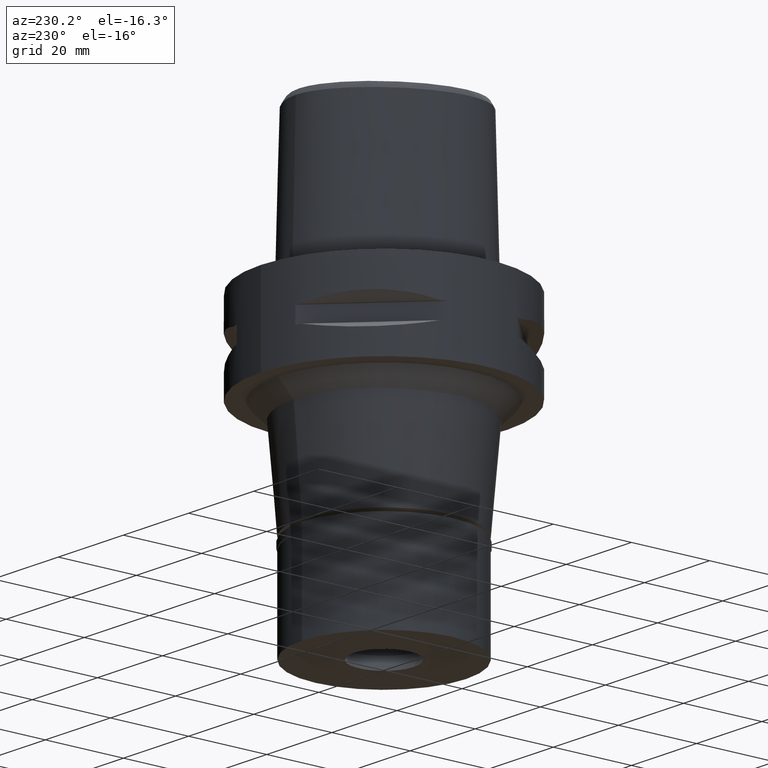
[diagram: clean part render]
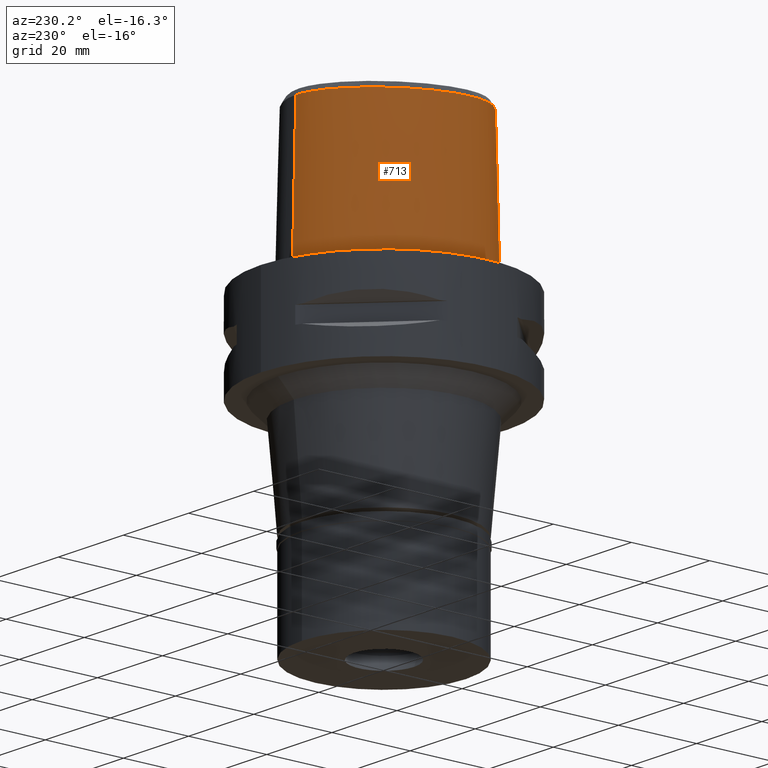
[diagram: same view with one face highlighted and labeled with its STEP entity id]
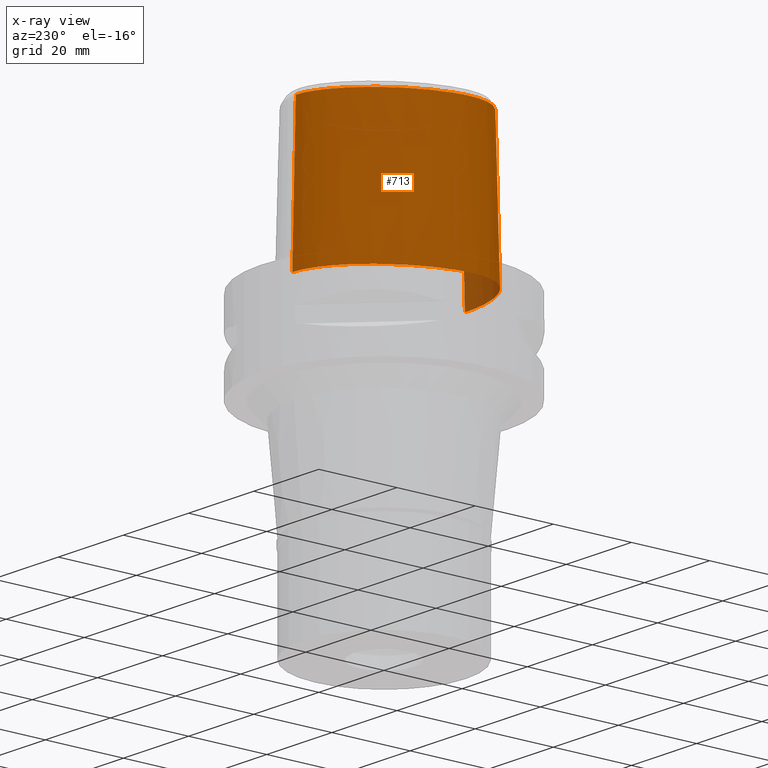
[diagram: x-ray of the same camera — body ghosted, the highlighted face saturated]
A machine part, auxiliary view. The second image highlights one B-rep face of the part: STEP entity #713.
The next image is the same camera in x-ray: the body ghosted, the highlighted face saturated — about 3% of this face is hidden behind the body in this view.
In plain terms, the highlighted face is a freeform B-spline surface patch.
Its self-contained STEP definition (entity closure, byte-faithful):
#1 = CARTESIAN_POINT ( 'NONE',  ( -22.05732873467161426, -6.847636717520081184, 3.441629198969696490E-07 ) ) ;
#24 = CARTESIAN_POINT ( 'NONE',  ( -21.55524825182212822, -8.996025388165341141, 3.441629198969696490E-07 ) ) ;
#25 = CARTESIAN_POINT ( 'NONE',  ( -2.959849823792572554, -20.23176327183055534, 12.73527464652173613 ) ) ;
#52 = CARTESIAN_POINT ( 'NONE',  ( -1.661817726879000115E-12, -20.38876923348000147, 11.44999999999999929 ) ) ;
#93 = CARTESIAN_POINT ( 'NONE',  ( 0.4696382034781999559, 23.16972802431000034, 11.93048338286000032 ) ) ;
#99 = CARTESIAN_POINT ( 'NONE',  ( -4.029432077527878242, -20.06721453946630618, 15.01437442104100484 ) ) ;
#122 = CARTESIAN_POINT ( 'NONE',  ( -3.551083459767261807, -20.15710162087193069, 13.53004354150726307 ) ) ;
#169 = CARTESIAN_POINT ( 'NONE',  ( -19.54161166109999925, -11.28235475116999886, 37.25232566485999541 ) ) ;
#193 = CARTESIAN_POINT ( 'NONE',  ( -10.14358064019000061, 18.45723403934000117, 37.25232566485999541 ) ) ;
#215 = CARTESIAN_POINT ( 'NONE',  ( -19.86834415665000009, 4.339653612124999782, 37.25232566485999541 ) ) ;
#218 = ORIENTED_EDGE ( 'NONE', *, *, #397, .T. ) ;
#236 = CARTESIAN_POINT ( 'NONE',  ( -22.26285556735000171, -4.100361500036999729, -0.7304377581344000392 ) ) ;
#259 = CARTESIAN_POINT ( 'NONE',  ( -4.750826140047999857, 21.65775785709999823, 37.25232566485999541 ) ) ;
#276 = CARTESIAN_POINT ( 'NONE',  ( -1.317019615845748337, -20.16707992222125512, 19.33098026910944967 ) ) ;
#280 = EDGE_LOOP ( 'NONE', ( #1073, #3391, #2094, #4333, #3644, #218, #3197, #1909 ) ) ;
#297 = CARTESIAN_POINT ( 'NONE',  ( -2.857315363469369540, -20.09903617488752303, 18.37023940744869321 ) ) ;
#308 = LINE ( 'NONE', #2653, #4291 ) ;
#309 = VERTEX_POINT ( 'NONE', #2639 ) ;
#343 = CARTESIAN_POINT ( 'NONE',  ( -5.098437014071874884, 22.52602538260950382, 3.441629198969696490E-07 ) ) ;
#349 = CARTESIAN_POINT ( 'NONE',  ( -2.842789508326925674, -20.09986324511327282, 18.38462965111123282 ) ) ;
#360 = CARTESIAN_POINT ( 'NONE',  ( 2.041042029990999821E-08, -19.88004246002000031, 31.80000004972000127 ) ) ;
#366 = EDGE_CURVE ( 'NONE', #570, #385, #2148, .T. ) ;
#385 = VERTEX_POINT ( 'NONE', #3046 ) ;
#395 = CARTESIAN_POINT ( 'NONE',  ( -7.571159429991846324, 21.31457030504720507, 3.441629198969696490E-07 ) ) ;
#397 = EDGE_CURVE ( 'NONE', #2769, #4321, #425, .T. ) ;
#399 = CARTESIAN_POINT ( 'NONE',  ( -1.661817726879000115E-12, -20.38876923348000147, 11.44999999999999929 ) ) ;
#419 = CARTESIAN_POINT ( 'NONE',  ( -20.34961797811084239, -11.74885741755973712, 3.441629198969696490E-07 ) ) ;
#420 = CARTESIAN_POINT ( 'NONE',  ( -2.088609826763990984, -20.31247420980785279, 12.02750272037200396 ) ) ;
#425 = B_SPLINE_CURVE_WITH_KNOTS ( 'NONE', 3,
 ( #2337, #4287, #840, #1956, #4655, #496, #1259, #448, #2359, #2802, #4578, #2754, #4600, #1587, #2733, #546, #3823, #2386, #4559, #918, #2438, #3844, #3869 ),
 .UNSPECIFIED., .F., .F.,
 ( 4, 1, 1, 1, 1, 1, 1, 1, 1, 1, 1, 1, 1, 1, 1, 1, 1, 1, 1, 1, 4 ),
 ( 0.0000000000000000000, 0.03580973941716368569, 0.1234633994701200693, 0.1672902294965457060, 0.2111170595229713565, 0.2549438895495022006, 0.2768573045626098739, 0.2987707195758226297, 0.3206841345891406347, 0.3425975496022482525, 0.3864243796287790134, 0.4302512096550994425, 0.4740780396816303144, 0.5617316997344815599, 0.6493853597874379435, 0.7370390198402891890, 0.8246926798930352964, 0.8685195099195660573, 0.9123463399460022272, 0.9561731699724383970, 1.000000000000000000 ),
 .UNSPECIFIED. ) ;
#448 = CARTESIAN_POINT ( 'NONE',  ( -18.90964971338730649, -12.28759719904381775, 36.52186244848004293 ) ) ;
#472 = CARTESIAN_POINT ( 'NONE',  ( -3.867987851167895119, -20.10354514999471576, 14.29756826632480582 ) ) ;
#496 = CARTESIAN_POINT ( 'NONE',  ( -16.39211280191593545, -14.95758113319465643, 36.52186244848004293 ) ) ;
#497 = CARTESIAN_POINT ( 'NONE',  ( -1.977206331265692452, -20.32050743453869757, 11.96330905372609799 ) ) ;
#519 = CARTESIAN_POINT ( 'NONE',  ( -2.503154198993181812, -19.81241979316332902, 31.80000012753033545 ) ) ;
#538 = CARTESIAN_POINT ( 'NONE',  ( -18.08416038489000144, 10.44089487312000131, -0.7304377581344000392 ) ) ;
#546 = CARTESIAN_POINT ( 'NONE',  ( -17.27359245833050139, 9.972912913898566600, 36.52186244847061403 ) ) ;
#568 = CARTESIAN_POINT ( 'NONE',  ( -18.89485270846000020, -12.27684368261999914, 37.25232566485999541 ) ) ;
#570 = VERTEX_POINT ( 'NONE', #2380 ) ;
#586 = CARTESIAN_POINT ( 'NONE',  ( -16.97022731231999870, -15.69280483270000026, -0.7304377581344000392 ) ) ;
#608 = CARTESIAN_POINT ( 'NONE',  ( -21.05621893652999788, -0.4440251899840000349, 37.25232566485999541 ) ) ;
#625 = CARTESIAN_POINT ( 'NONE',  ( -1.022356909784995604, -20.17471979261204496, 19.42121704673484928 ) ) ;
#633 = CARTESIAN_POINT ( 'NONE',  ( -21.57281239451999966, -9.001246195747999224, -0.7304377581344000392 ) ) ;
#670 = CARTESIAN_POINT ( 'NONE',  ( -2.797646836458226094, -20.10241019320246636, 18.42861229340974916 ) ) ;
#687 = CARTESIAN_POINT ( 'NONE',  ( -11.23259756431803069, -18.89324217936943739, 3.441629198969696490E-07 ) ) ;
#692 = CARTESIAN_POINT ( 'NONE',  ( -3.719813922851108678, -20.04919639763396688, 17.10180620201972346 ) ) ;
#703 = CARTESIAN_POINT ( 'NONE',  ( 0.4560943670357999746, -20.69106768676000030, -0.7304377581344000392 ) ) ;
#713 = ADVANCED_FACE ( 'NONE', ( #3136 ), #2235, .T. ) ;
#722 = CARTESIAN_POINT ( 'NONE',  ( -1.541601196968726439, -20.15999053869087376, 19.24512624620321688 ) ) ;
#741 = CARTESIAN_POINT ( 'NONE',  ( -10.74572890502576961, 19.17433593087259069, 3.441629198969696490E-07 ) ) ;
#745 = CARTESIAN_POINT ( 'NONE',  ( -4.049380355484204941, -20.05052708583788856, 15.57772937486773479 ) ) ;
#753 = CARTESIAN_POINT ( 'NONE',  ( 0.4439216892824000560, -19.74161834927000214, 37.25232566485999541 ) ) ;
#766 = CARTESIAN_POINT ( 'NONE',  ( -18.56841064515890594, -14.16937987687428446, 3.441629198969696490E-07 ) ) ;
#767 = CARTESIAN_POINT ( 'NONE',  ( -3.956604743486963560, -20.08538240419652965, 14.62524707979685701 ) ) ;
#785 = CARTESIAN_POINT ( 'NONE',  ( 0.6658292871552999870, 22.52368266482999815, 37.25232566485999541 ) ) ;
#787 = CARTESIAN_POINT ( 'NONE',  ( -3.736722311398999796, -19.67781602443999844, 31.80000000000000071 ) ) ;
#793 = CARTESIAN_POINT ( 'NONE',  ( -3.145688023666773248, -20.21028107318161560, 12.94651254117393790 ) ) ;
#840 = CARTESIAN_POINT ( 'NONE',  ( -7.300578999875363628, -19.07170748891658008, 36.52186244848004293 ) ) ;
#841 = CARTESIAN_POINT ( 'NONE',  ( -1.596128179208920805, -20.34441808942903762, 11.77774001012001648 ) ) ;
#870 = CARTESIAN_POINT ( 'NONE',  ( -1.559125063743354023, -20.34646528984321634, 11.76212569188356483 ) ) ;
#912 = CARTESIAN_POINT ( 'NONE',  ( -20.65879046252000251, -10.48283618550000007, 11.93048338286000032 ) ) ;
#918 = CARTESIAN_POINT ( 'NONE',  ( -4.757642277158981692, 21.67478330407301002, 36.52186244848004293 ) ) ;
#936 = CARTESIAN_POINT ( 'NONE',  ( -2.503210899606000073, 22.99958936463000114, 11.93048338286000032 ) ) ;
#943 = CARTESIAN_POINT ( 'NONE',  ( -3.704239276368590961, -19.64128040965313460, 33.37395414949332917 ) ) ;
#963 = CARTESIAN_POINT ( 'NONE',  ( -20.36913766458000197, -10.35391840021000043, 24.59140452385999964 ) ) ;
#983 = CARTESIAN_POINT ( 'NONE',  ( -7.099337687541999564, 20.50831375519000233, 37.25232566485999541 ) ) ;
#1005 = CARTESIAN_POINT ( 'NONE',  ( -21.44619289842999876, -6.759806545885999718, 24.59140452385999964 ) ) ;
#1022 = CARTESIAN_POINT ( 'NONE',  ( -1.531415402279227234, -20.16033292941942889, 19.24930670798917731 ) ) ;
#1044 = CARTESIAN_POINT ( 'NONE',  ( -0.2465875714314316736, -20.18628283969000492, 19.55000000000000071 ) ) ;
#1050 = CARTESIAN_POINT ( 'NONE',  ( -1.853278688440999966, -20.08023918736000368, 24.59140452385999964 ) ) ;
#1067 = CARTESIAN_POINT ( 'NONE',  ( -3.843226891659567990, -20.04326967196604770, 16.80669488626443453 ) ) ;
#1073 = ORIENTED_EDGE ( 'NONE', *, *, #4581, .F. ) ;
#1091 = CARTESIAN_POINT ( 'NONE',  ( -0.5021919333195310475, -20.18408035453229132, 19.52742672269794610 ) ) ;
#1114 = CARTESIAN_POINT ( 'NONE',  ( -4.017504546883868599, -20.04299984835959236, 16.02821068311043362 ) ) ;
#1121 = CARTESIAN_POINT ( 'NONE',  ( -6.232237572135999493, -19.68961172917000013, 24.59140452385999964 ) ) ;
#1133 = CARTESIAN_POINT ( 'NONE',  ( -1.038064003293436954, -20.37481329331115631, 11.54609264903705323 ) ) ;
#1149 = EDGE_CURVE ( 'NONE', #3904, #4741, #1903, .T. ) ;
#1150 = CARTESIAN_POINT ( 'NONE',  ( 6.819067132380117027E-09, -19.98212988583278005, 27.71666688228179254 ) ) ;
#1158 = CARTESIAN_POINT ( 'NONE',  ( -22.24453906991494279, -4.100468750050205280, 3.441629198969696490E-07 ) ) ;
#1159 = CARTESIAN_POINT ( 'NONE',  ( -3.226606941002307494, -20.20026030062611255, 13.05134941781085089 ) ) ;
#1259 = CARTESIAN_POINT ( 'NONE',  ( -17.90324032096225793, -13.53935111955195403, 36.52186244848004293 ) ) ;
#1278 = CARTESIAN_POINT ( 'NONE',  ( -20.46725041954999824, 4.555493640485000384, 11.93048338286000032 ) ) ;
#1301 = CARTESIAN_POINT ( 'NONE',  ( -20.76670355099999909, 4.663413654663999708, -0.7304377581344000392 ) ) ;
#1309 = CARTESIAN_POINT ( 'NONE',  ( -3.671249123513567802, -19.60525173594972514, 34.94790829898666829 ) ) ;
#1325 = CARTESIAN_POINT ( 'NONE',  ( -10.34823233993000002, 18.70095494589999774, 24.59140452385999964 ) ) ;
#1352 = CARTESIAN_POINT ( 'NONE',  ( -10.75753573941999974, 19.18839675902999886, -0.7304377581344000392 ) ) ;
#1371 = CARTESIAN_POINT ( 'NONE',  ( -17.53318573147999970, 10.12278927168000031, 24.59140452385999964 ) ) ;
#1387 = CARTESIAN_POINT ( 'NONE',  ( -1.218758968578478985, -20.16976420100720091, 19.36287338274978254 ) ) ;
#1413 = CARTESIAN_POINT ( 'NONE',  ( -2.506005705531090477, -20.11792984725621025, 18.68269362135634637 ) ) ;
#1420 = CARTESIAN_POINT ( 'NONE',  ( -1.870070490387999884, -20.39691389421999901, 11.93048338286000032 ) ) ;
#1433 = EDGE_CURVE ( 'NONE', #2769, #3662, #3959, .T. ) ;
#1439 = CARTESIAN_POINT ( 'NONE',  ( -3.727468641458606236, -20.04882030213079958, 17.08383066321836452 ) ) ;
#1454 = EDGE_CURVE ( 'NONE', #309, #3662, #3032, .T. ) ;
#1485 = CARTESIAN_POINT ( 'NONE',  ( -16.95889172059685279, -15.67838866508460072, 3.441629198969696490E-07 ) ) ;
#1491 = CARTESIAN_POINT ( 'NONE',  ( -3.268879148500512422, -20.07506799491126870, 17.90553241905220716 ) ) ;
#1515 = CARTESIAN_POINT ( 'NONE',  ( -3.637738201363999835, -19.56971413236999879, 36.52186244848000030 ) ) ;
#1540 = CARTESIAN_POINT ( 'NONE',  ( -4.050822018950117176, -20.05812548816914997, 15.26904667092838253 ) ) ;
#1587 = CARTESIAN_POINT ( 'NONE',  ( -21.07430010672459630, -0.4408303445192950920, 36.52186244848004293 ) ) ;
#1611 = CARTESIAN_POINT ( 'NONE',  ( -3.772619049652670142, -20.12080010158280530, 14.02677620304511308 ) ) ;
#1633 = CARTESIAN_POINT ( 'NONE',  ( -3.736722311398999796, -19.67781602443999844, 31.80000000000000071 ) ) ;
#1680 = CARTESIAN_POINT ( 'NONE',  ( -19.40779766805999884, -12.64961925947000054, 11.93048338286000032 ) ) ;
#1681 = EDGE_CURVE ( 'NONE', #309, #3904, #1912, .T. ) ;
#1703 = CARTESIAN_POINT ( 'NONE',  ( -21.31039814949999922, -4.105938498095000000, 37.25232566485999541 ) ) ;
#1723 = CARTESIAN_POINT ( 'NONE',  ( -21.99640701788999664, -0.2778990158826999957, -0.7304377581344000392 ) ) ;
#1746 = CARTESIAN_POINT ( 'NONE',  ( -21.62788395544999887, -4.104079498742000176, 24.59140452385999964 ) ) ;
#1769 = CARTESIAN_POINT ( 'NONE',  ( -14.52531262065999940, -16.95413746055000104, 11.93048338286000032 ) ) ;
#1816 = CARTESIAN_POINT ( 'NONE',  ( -3.544068355345226795, -20.05881304102014795, 17.46363488651062923 ) ) ;
#1825 = CARTESIAN_POINT ( 'NONE',  ( -14.21104791763000108, -16.40237691761999628, 37.25232566485999541 ) ) ;
#1838 = CARTESIAN_POINT ( 'NONE',  ( -1.517151023953191569, -20.16080907702859548, 19.25511494137359492 ) ) ;
#1857 = CARTESIAN_POINT ( 'NONE',  ( 6.589893038288000081E-11, 23.47499999998000320, 1.563934167354999746E-13 ) ) ;
#1870 = CARTESIAN_POINT ( 'NONE',  ( -11.02138179110999872, -18.31230451265999903, 24.59140452385999964 ) ) ;
#1882 = CARTESIAN_POINT ( 'NONE',  ( -20.74942740066090252, 4.657187497066225923, 3.441629198969696490E-07 ) ) ;
#1903 = B_SPLINE_CURVE_WITH_KNOTS ( 'NONE', 3,
 ( #2150, #1044, #1091, #2548, #625, #1387, #276, #2616, #4415, #1838, #1022, #4018, #722, #2571, #2172, #3658, #3292, #4780, #1413, #2242, #2932, #3724, #670, #2194, #349, #3364, #297, #4852, #1491, #4488, #1816, #3317, #2953, #4807, #2521, #692, #1439, #4440, #3340, #1067, #2594, #4107, #1114, #2644, #2267, #3751, #745, #1933, #1540, #99, #767, #3411, #472, #1984, #4532, #1611, #3118, #3504, #3047, #3801, #122, #2387, #4156, #2338, #4180, #1159, #793, #3020, #25, #1957, #4129, #3870, #2009, #2315, #4203, #420, #497, #4507, #3482, #2734, #4579, #841, #3434, #3096, #870, #1133, #4601, #52 ),
 .UNSPECIFIED., .F., .F.,
 ( 4, 2, 2, 1, 1, 1, 1, 1, 2, 2, 2, 2, 2, 1, 1, 1, 2, 2, 2, 2, 2, 1, 1, 2, 2, 2, 2, 1, 2, 2, 2, 2, 1, 1, 1, 2, 2, 2, 2, 2, 1, 1, 1, 1, 2, 2, 2, 2, 2, 1, 1, 2, 2, 4 ),
 ( 0.0000000000000000000, 0.06249999999997690736, 0.09374999999996537492, 0.1093749999999596434, 0.1171874999999567568, 0.1210937499999554523, 0.1230468749999548139, 0.1240234374999544531, 0.1245117187499541200, 0.1249999999999537870, 0.1874999999999379940, 0.2187499999999301115, 0.2343749999999261147, 0.2421874999999243383, 0.2460937499999236722, 0.2480468749999231726, 0.2490234374999228950, 0.2499999999999226175, 0.3124999999999080735, 0.3437499999999004685, 0.3593749999998966937, 0.3671874999998951949, 0.3710937499998949174, 0.3730468749998947509, 0.3749999999998945843, 0.4374999999999062417, 0.4687499999999120703, 0.4843749999999149569, 0.4921874999999159561, 0.4999999999999165112, 0.5624999999999221734, 0.5937499999999247269, 0.6093749999999261702, 0.6171874999999270583, 0.6210937499999275024, 0.6230468749999276135, 0.6249999999999278355, 0.6874999999999350520, 0.6953124999999359401, 0.7031249999999368283, 0.7187499999999384936, 0.7343749999999401590, 0.7421874999999411582, 0.7460937499999414912, 0.7480468749999418243, 0.7499999999999422684, 0.8124999999999570344, 0.8437499999999643618, 0.8593749999999679146, 0.8671874999999698019, 0.8710937499999709122, 0.8730468749999713562, 0.8749999999999719114, 1.000000000000000000 ),
 .UNSPECIFIED. ) ;
#1909 = ORIENTED_EDGE ( 'NONE', *, *, #366, .T. ) ;
#1912 = B_SPLINE_CURVE_WITH_KNOTS ( 'NONE', 3,
 ( #360, #1150, #3352, #2678 ),
 .UNSPECIFIED., .F., .F.,
 ( 4, 4 ),
 ( 0.0000000000000000000, 1.000000000000000000 ),
 .UNSPECIFIED. ) ;
#1933 = CARTESIAN_POINT ( 'NONE',  ( -4.049870060086219858, -20.05130102129822589, 15.54460910783599914 ) ) ;
#1956 = CARTESIAN_POINT ( 'NONE',  ( -10.91891098964702955, -18.03046406390577161, 36.52186244848004293 ) ) ;
#1957 = CARTESIAN_POINT ( 'NONE',  ( -2.919880518336348985, -20.23621022156304505, 12.69335127770128757 ) ) ;
#1984 = CARTESIAN_POINT ( 'NONE',  ( -3.836466503143192597, -20.10950408110994658, 14.19903511296639032 ) ) ;
#2009 = CARTESIAN_POINT ( 'NONE',  ( -2.886329479777532292, -20.23990628844108741, 12.65892640036732786 ) ) ;
#2037 = CARTESIAN_POINT ( 'NONE',  ( -3.736722311398999796, -19.67781602443999844, 31.80000000000000071 ) ) ;
#2061 = CARTESIAN_POINT ( 'NONE',  ( -21.94536976140000206, -4.102220499390000441, 11.93048338286000032 ) ) ;
#2089 = CARTESIAN_POINT ( 'NONE',  ( -18.58171406730999919, -14.18198046686000069, -0.7304377581344000392 ) ) ;
#2094 = ORIENTED_EDGE ( 'NONE', *, *, #1681, .F. ) ;
#2115 = CARTESIAN_POINT ( 'NONE',  ( -10.55288403967999855, 18.94467585246999874, 11.93048338286000032 ) ) ;
#2134 = CARTESIAN_POINT ( 'NONE',  ( -7.420053123281999063, 21.05635742813000277, 11.93048338286000032 ) ) ;
#2148 = B_SPLINE_CURVE_WITH_KNOTS ( 'NONE', 3,
 ( #1857, #4531, #3720, #343, #395, #741, #2949, #2611, #1882, #2314, #1158, #1, #24, #3800, #419, #4128, #766, #1485, #4080, #687, #2214, #2287, #4846 ),
 .UNSPECIFIED., .F., .F.,
 ( 4, 1, 1, 1, 1, 1, 1, 1, 1, 1, 1, 1, 1, 1, 1, 1, 1, 1, 1, 1, 4 ),
 ( 0.0000000000000000000, 0.04166666666767999960, 0.08333333333429000789, 0.1250000000009000023, 0.1666666666676000219, 0.2500000000006999956, 0.3333333333339000282, 0.4166666666672000363, 0.5000000000004000134, 0.5416666666671000607, 0.5833333333336000459, 0.6250000000002999823, 0.6458333333335000148, 0.6666666666668999985, 0.6875000000001999512, 0.7083333333333999837, 0.7500000000001000311, 0.7916666666667000474, 0.8333333333333000637, 0.9166666666666000163, 1.000000000000000000 ),
 .UNSPECIFIED. ) ;
#2150 = CARTESIAN_POINT ( 'NONE',  ( 0.0000000000000000000, -20.18628283968999781, 19.55000000000000071 ) ) ;
#2157 = CARTESIAN_POINT ( 'NONE',  ( -20.16779728810000094, 4.447573626305000083, 24.59140452385999964 ) ) ;
#2172 = CARTESIAN_POINT ( 'NONE',  ( -1.657686341095815807, -20.15606769384148933, 19.19719645579775147 ) ) ;
#2194 = CARTESIAN_POINT ( 'NONE',  ( -2.829232861714127800, -20.10063223970132995, 18.39796853410856770 ) ) ;
#2214 = CARTESIAN_POINT ( 'NONE',  ( -6.341471017683230293, -20.29812499148487603, 3.441629198969696490E-07 ) ) ;
#2235 = B_SPLINE_SURFACE_WITH_KNOTS ( 'NONE', 3, 3, ( 
 ( #3474, #4247, #4146, #785 ),
 ( #4551, #93, #3111, #4595 ),
 ( #2750, #2305, #4650, #4329 ),
 ( #3232, #936, #4723, #2873 ),
 ( #3910, #2528, #2433, #259 ),
 ( #2895, #2134, #3161, #983 ),
 ( #1352, #2115, #1325, #193 ),
 ( #4276, #4356, #2506, #4745 ),
 ( #538, #4672, #1371, #3617 ),
 ( #1301, #1278, #2157, #215 ),
 ( #1723, #3981, #3934, #608 ),
 ( #236, #2061, #1746, #1703 ),
 ( #3254, #4376, #1005, #4003 ),
 ( #633, #3641, #2796, #2821 ),
 ( #3574, #912, #963, #3187 ),
 ( #3210, #3550, #4306, #169 ),
 ( #2459, #1680, #4700, #568 ),
 ( #2089, #2847, #2485, #3957 ),
 ( #586, #3596, #3011, #4789 ),
 ( #4424, #1769, #4861, #1825 ),
 ( #3298, #3732, #1870, #2274 ),
 ( #3666, #4048, #1121, #2940 ),
 ( #2961, #1420, #1050, #3759 ),
 ( #703, #2915, #2652, #753 ),
 ( #2985, #2578, #4116, #3277 ) ),
 .UNSPECIFIED., .F., .F., .F.,
 ( 4, 1, 1, 1, 1, 1, 1, 1, 1, 1, 1, 1, 1, 1, 1, 1, 1, 1, 1, 1, 1, 1, 4 ),
 ( 4, 4 ),
 ( -0.01173777939057000022, 0.0000000000000000000, 0.04166666666767999960, 0.08333333333429000789, 0.1250000000009000023, 0.1666666666676000219, 0.2500000000006999956, 0.3333333333339000282, 0.4166666666672000363, 0.5000000000004000134, 0.5416666666671000607, 0.5833333333336000459, 0.6250000000002999823, 0.6458333333335000148, 0.6666666666668999985, 0.6875000000001999512, 0.7083333333333999837, 0.7500000000001000311, 0.7916666666667000474, 0.8333333333333000637, 0.9166666666666000163, 1.000000000000000000, 1.008985696609000060 ),
 ( -6.741745738059000278E-10, 1.000000034383000003 ),
 .UNSPECIFIED. ) ;
#2242 = CARTESIAN_POINT ( 'NONE',  ( -2.575313084518050744, -20.11438970407760607, 18.62713341391975774 ) ) ;
#2267 = CARTESIAN_POINT ( 'NONE',  ( -4.043905619011945340, -20.04716297040242168, 15.73780341143908856 ) ) ;
#2274 = CARTESIAN_POINT ( 'NONE',  ( -10.91263703505999949, -18.01320788798999928, 37.25232566485999541 ) ) ;
#2287 = CARTESIAN_POINT ( 'NONE',  ( -2.113823672553706956, -20.67499999139312905, 3.441629198969696490E-07 ) ) ;
#2305 = CARTESIAN_POINT ( 'NONE',  ( -0.5985508168752999847, 23.20171274609999656, 11.93048338286000032 ) ) ;
#2314 = CARTESIAN_POINT ( 'NONE',  ( -21.97832646934477197, -0.2810937515053071878, 3.441629198969696490E-07 ) ) ;
#2315 = CARTESIAN_POINT ( 'NONE',  ( -2.657695532574368968, -20.26492947409685286, 12.42777794366765320 ) ) ;
#2337 = CARTESIAN_POINT ( 'NONE',  ( -3.637738201363999835, -19.56971413236999879, 36.52186244848000030 ) ) ;
#2338 = CARTESIAN_POINT ( 'NONE',  ( -3.302902889847149748, -20.19049785879208514, 13.15590029612108935 ) ) ;
#2359 = CARTESIAN_POINT ( 'NONE',  ( -19.55745547455588351, -11.29150218116781801, 36.52186244848004293 ) ) ;
#2380 = CARTESIAN_POINT ( 'NONE',  ( 6.589893038288000081E-11, 23.47499999998000320, 1.563934167354999746E-13 ) ) ;
#2386 = CARTESIAN_POINT ( 'NONE',  ( -10.15538788052938912, 18.47129535093986874, 36.52186244848004293 ) ) ;
#2387 = CARTESIAN_POINT ( 'NONE',  ( -3.367817742652754909, -20.18191931723143284, 13.25018106307668120 ) ) ;
#2398 = CARTESIAN_POINT ( 'NONE',  ( -1.661817726879000115E-12, -20.38876923348000147, 11.44999999999999929 ) ) ;
#2433 = CARTESIAN_POINT ( 'NONE',  ( -4.868968398977999712, 21.95285531948000113, 24.59140452385999964 ) ) ;
#2438 = CARTESIAN_POINT ( 'NONE',  ( -2.376843896519683419, 22.39422508473729678, 36.52186244848003582 ) ) ;
#2459 = CARTESIAN_POINT ( 'NONE',  ( -19.66427014785999816, -12.83600704788999991, -0.7304377581344000392 ) ) ;
#2485 = CARTESIAN_POINT ( 'NONE',  ( -18.12052898338000162, -13.74516021983999892, 24.59140452385999964 ) ) ;
#2506 = CARTESIAN_POINT ( 'NONE',  ( -13.93560861395000039, 15.24203787210000094, 24.59140452385999964 ) ) ;
#2508 = CARTESIAN_POINT ( 'NONE',  ( 0.0000000000000000000, -20.18628283968999781, 19.55000000000000071 ) ) ;
#2521 = CARTESIAN_POINT ( 'NONE',  ( -3.701411688851937054, -20.05012133956634912, 17.14416703419992771 ) ) ;
#2528 = CARTESIAN_POINT ( 'NONE',  ( -4.987110657907000366, 22.24795278184999958, 11.93048338286000032 ) ) ;
#2548 = CARTESIAN_POINT ( 'NONE',  ( -0.8915885463383507181, -20.17747289905917540, 19.45285157199033677 ) ) ;
#2571 = CARTESIAN_POINT ( 'NONE',  ( -1.544799653984467946, -20.15988259064095089, 19.24380754385020253 ) ) ;
#2578 = CARTESIAN_POINT ( 'NONE',  ( 0.6779535336912999588, -20.37023519264999649, 11.93048338286000032 ) ) ;
#2580 = DIRECTION ( 'NONE',  ( 2.208689679466960461E-12, 0.02499051290944955331, -0.9996876883629820520 ) ) ;
#2594 = CARTESIAN_POINT ( 'NONE',  ( -3.921185458999718154, -20.04104757781626489, 16.54728301357227238 ) ) ;
#2611 = CARTESIAN_POINT ( 'NONE',  ( -18.06826687778352891, 10.43171874567799051, 3.441629198427595404E-07 ) ) ;
#2616 = CARTESIAN_POINT ( 'NONE',  ( -1.431468925069359077, -20.16358691841646333, 19.28887059401683501 ) ) ;
#2639 = CARTESIAN_POINT ( 'NONE',  ( 2.041042029990999821E-08, -19.88004246002000031, 31.80000004972000127 ) ) ;
#2644 = CARTESIAN_POINT ( 'NONE',  ( -4.036688622553130656, -20.04559758364250399, 15.83445073186680041 ) ) ;
#2652 = CARTESIAN_POINT ( 'NONE',  ( 0.4479792485336000496, -20.05810146177000419, 24.59140452385999964 ) ) ;
#2653 = CARTESIAN_POINT ( 'NONE',  ( -1.479174054511000190E-11, 22.56201468012000078, 36.52186680743999858 ) ) ;
#2678 = CARTESIAN_POINT ( 'NONE',  ( 0.0000000000000000000, -20.18628283968999781, 19.55000000000000071 ) ) ;
#2733 = CARTESIAN_POINT ( 'NONE',  ( -19.88562090098147195, 4.345879983791940404, 36.52186244848004293 ) ) ;
#2734 = CARTESIAN_POINT ( 'NONE',  ( -1.680938315663630389, -20.33952438085821512, 11.81519359546025782 ) ) ;
#2750 = CARTESIAN_POINT ( 'NONE',  ( -0.6149727127908000135, 23.51889465125000100, -0.7304377581344000392 ) ) ;
#2754 = CARTESIAN_POINT ( 'NONE',  ( -21.14970188363361459, -6.717195958887933749, 36.52186244848004293 ) ) ;
#2769 = VERTEX_POINT ( 'NONE', #1515 ) ;
#2796 = CARTESIAN_POINT ( 'NONE',  ( -20.96392240121999961, -8.820258284824999961, 24.59140452385999964 ) ) ;
#2802 = CARTESIAN_POINT ( 'NONE',  ( -20.09619618740887859, -10.23243843868043434, 36.52186244848004293 ) ) ;
#2821 = CARTESIAN_POINT ( 'NONE',  ( -20.65947740457000137, -8.729764329363998598, 37.25232566485999541 ) ) ;
#2847 = CARTESIAN_POINT ( 'NONE',  ( -18.35112152533999819, -13.96357034335000158, 11.93048338286000032 ) ) ;
#2873 = CARTESIAN_POINT ( 'NONE',  ( -2.373090286454000442, 22.37624332220000056, 37.25232566485999541 ) ) ;
#2895 = CARTESIAN_POINT ( 'NONE',  ( -7.580410841151000945, 21.33037926460000122, -0.7304377581344000392 ) ) ;
#2915 = CARTESIAN_POINT ( 'NONE',  ( 0.4520368077846999566, -20.37458457425999825, 11.93048338286000032 ) ) ;
#2932 = CARTESIAN_POINT ( 'NONE',  ( -2.681242630710225061, -20.10878020328781801, 18.53572284196004105 ) ) ;
#2940 = CARTESIAN_POINT ( 'NONE',  ( -6.175998569681000028, -19.37631776794999894, 37.25232566485999541 ) ) ;
#2949 = CARTESIAN_POINT ( 'NONE',  ( -14.40795638296994952, 15.64093749441825310, 3.441629198969696490E-07 ) ) ;
#2953 = CARTESIAN_POINT ( 'NONE',  ( -3.649893699645536227, -20.05285177016844500, 17.25607727549096282 ) ) ;
#2961 = CARTESIAN_POINT ( 'NONE',  ( -1.886862292336000113, -20.71358860108000144, -0.7304377581344000392 ) ) ;
#2985 = CARTESIAN_POINT ( 'NONE',  ( 0.6840430853944000633, -20.68668155182999868, -0.7304377581344000392 ) ) ;
#3011 = CARTESIAN_POINT ( 'NONE',  ( -16.57726031774000219, -15.19304459083999959, 24.59140452385999964 ) ) ;
#3020 = CARTESIAN_POINT ( 'NONE',  ( -3.038237730899508993, -20.22289155886184986, 12.82058177758299600 ) ) ;
#3032 = B_SPLINE_CURVE_WITH_KNOTS ( 'NONE', 3,
 ( #3891, #4630, #519, #2037 ),
 .UNSPECIFIED., .F., .F.,
 ( 4, 4 ),
 ( 0.0000000000000000000, 1.000000000000000000 ),
 .UNSPECIFIED. ) ;
#3046 = CARTESIAN_POINT ( 'NONE',  ( -1.332770356132000049E-11, -20.67499999999999716, 1.593170040336999923E-13 ) ) ;
#3047 = CARTESIAN_POINT ( 'NONE',  ( -3.752273411091828770, -20.12428615474748383, 13.97586344741434594 ) ) ;
#3084 = LINE ( 'NONE', #2398, #3649 ) ;
#3096 = CARTESIAN_POINT ( 'NONE',  ( -1.563929156837620127, -20.34620149952857560, 11.76413674312192725 ) ) ;
#3111 = CARTESIAN_POINT ( 'NONE',  ( 0.4569144511199999537, 22.85341786452000079, 24.59140452385999964 ) ) ;
#3118 = CARTESIAN_POINT ( 'NONE',  ( -3.762868236446376802, -20.12247581100902494, 14.00220146082024719 ) ) ;
#3136 = FACE_OUTER_BOUND ( 'NONE', #280, .T. ) ;
#3161 = CARTESIAN_POINT ( 'NONE',  ( -7.259695405411999758, 20.78233559165999722, 24.59140452385999964 ) ) ;
#3187 = CARTESIAN_POINT ( 'NONE',  ( -20.07948486664000143, -10.22500061492000079, 37.25232566485999541 ) ) ;
#3197 = ORIENTED_EDGE ( 'NONE', *, *, #4065, .T. ) ;
#3210 = CARTESIAN_POINT ( 'NONE',  ( -20.36546124684000247, -11.75800453305999937, -0.7304377581344000392 ) ) ;
#3232 = CARTESIAN_POINT ( 'NONE',  ( -2.568271206182999755, 23.31126238583999921, -0.7304377581344000392 ) ) ;
#3240 = CARTESIAN_POINT ( 'NONE',  ( -1.479174054511000190E-11, 22.56201468012000078, 36.52186680743999858 ) ) ;
#3254 = CARTESIAN_POINT ( 'NONE',  ( -22.07548129306999840, -6.850245535764999616, -0.7304377581344000392 ) ) ;
#3277 = CARTESIAN_POINT ( 'NONE',  ( 0.6657744302849999407, -19.73734247427999833, 37.25232566485999541 ) ) ;
#3292 = CARTESIAN_POINT ( 'NONE',  ( -2.177753203304285012, -20.13383484701796888, 18.91723079810352814 ) ) ;
#3298 = CARTESIAN_POINT ( 'NONE',  ( -11.23887130319999983, -18.91049776199999854, -0.7304377581344000392 ) ) ;
#3317 = CARTESIAN_POINT ( 'NONE',  ( -3.624914349924782453, -20.05423377757667325, 17.30719162637215192 ) ) ;
#3340 = CARTESIAN_POINT ( 'NONE',  ( -3.734193266858147009, -20.04849291686098667, 17.06792035012365716 ) ) ;
#3352 = CARTESIAN_POINT ( 'NONE',  ( 6.839047471413721951E-09, -20.08420636276031601, 23.63333344114091972 ) ) ;
#3364 = CARTESIAN_POINT ( 'NONE',  ( -2.851831221006937866, -20.09934902327320216, 18.37569106470320790 ) ) ;
#3391 = ORIENTED_EDGE ( 'NONE', *, *, #1149, .F. ) ;
#3411 = CARTESIAN_POINT ( 'NONE',  ( -3.925547254812513653, -20.09219407373735322, 14.49438222273063914 ) ) ;
#3434 = CARTESIAN_POINT ( 'NONE',  ( -1.576791917575649737, -20.34549197851587365, 11.76954748986578636 ) ) ;
#3474 = CARTESIAN_POINT ( 'NONE',  ( 0.7234356452510000146, 23.47140592864999675, -0.7304377581344000392 ) ) ;
#3482 = CARTESIAN_POINT ( 'NONE',  ( -1.760336828833401812, -20.33472923098620555, 11.85210722621051360 ) ) ;
#3504 = CARTESIAN_POINT ( 'NONE',  ( -3.756307286501246345, -20.12359885464705656, 13.98582253411176346 ) ) ;
#3550 = CARTESIAN_POINT ( 'NONE',  ( -20.09084471826000140, -11.59945460576000009, 11.93048338286000032 ) ) ;
#3574 = CARTESIAN_POINT ( 'NONE',  ( -20.94844326046000305, -10.61175397078999971, -0.7304377581344000392 ) ) ;
#3596 = CARTESIAN_POINT ( 'NONE',  ( -16.77374381502999867, -15.44292471177000081, 11.93048338286000032 ) ) ;
#3617 = CARTESIAN_POINT ( 'NONE',  ( -17.25769840477000017, 9.963736470961000791, 37.25232566484999808 ) ) ;
#3641 = CARTESIAN_POINT ( 'NONE',  ( -21.26836739787000141, -8.910752240286999637, 11.93048338286000032 ) ) ;
#3644 = ORIENTED_EDGE ( 'NONE', *, *, #1433, .F. ) ;
#3649 = VECTOR ( 'NONE', #4192, 1000.000000000000114 ) ;
#3658 = CARTESIAN_POINT ( 'NONE',  ( -1.835542278663002458, -20.14908998565208620, 19.11988755505995385 ) ) ;
#3662 = VERTEX_POINT ( 'NONE', #787 ) ;
#3666 = CARTESIAN_POINT ( 'NONE',  ( -6.344715577046000199, -20.31619965160999897, -0.7304377581344000392 ) ) ;
#3720 = CARTESIAN_POINT ( 'NONE',  ( -2.564517725188864450, 23.29328124152871382, 3.441629198969696490E-07 ) ) ;
#3724 = CARTESIAN_POINT ( 'NONE',  ( -2.734696286037845869, -20.10590063138745975, 18.48800022387464281 ) ) ;
#3732 = CARTESIAN_POINT ( 'NONE',  ( -11.13012654714999883, -18.61140113733000234, 11.93048338286000032 ) ) ;
#3751 = CARTESIAN_POINT ( 'NONE',  ( -4.047647509273149424, -20.04912813584000730, 15.64167836734513983 ) ) ;
#3759 = CARTESIAN_POINT ( 'NONE',  ( -1.836486886494000048, -19.76356448049999770, 37.25232566485999541 ) ) ;
#3800 = CARTESIAN_POINT ( 'NONE',  ( -20.93173251424364523, -10.60431640274965481, 3.441629198969696490E-07 ) ) ;
#3801 = CARTESIAN_POINT ( 'NONE',  ( -3.665886512569303868, -20.13895794050600330, 13.76422634779187781 ) ) ;
#3823 = CARTESIAN_POINT ( 'NONE',  ( -13.70645028111677277, 15.04851272300977705, 36.52186244848004293 ) ) ;
#3844 = CARTESIAN_POINT ( 'NONE',  ( -0.7901461696978493432, 22.56201478746796241, 36.52186244848003582 ) ) ;
#3869 = CARTESIAN_POINT ( 'NONE',  ( -1.479174054511000190E-11, 22.56201468012000078, 36.52186680743999858 ) ) ;
#3870 = CARTESIAN_POINT ( 'NONE',  ( -2.891021041024513405, -20.23939110435335209, 12.66370562009162093 ) ) ;
#3891 = CARTESIAN_POINT ( 'NONE',  ( 2.041042029990999821E-08, -19.88004246002000031, 31.80000004972000127 ) ) ;
#3904 = VERTEX_POINT ( 'NONE', #2508 ) ;
#3910 = CARTESIAN_POINT ( 'NONE',  ( -5.105252916836999333, 22.54305024423000248, -0.7304377581344000392 ) ) ;
#3934 = CARTESIAN_POINT ( 'NONE',  ( -21.36961496365000102, -0.3886497986168999663, 24.59140452385999964 ) ) ;
#3957 = CARTESIAN_POINT ( 'NONE',  ( -17.88993644141000061, -13.52675009632999981, 37.25232566485999541 ) ) ;
#3959 = B_SPLINE_CURVE_WITH_KNOTS ( 'NONE', 3,
 ( #4680, #1309, #943, #1633 ),
 .UNSPECIFIED., .F., .F.,
 ( 4, 4 ),
 ( 0.0000000000000000000, 1.000000000000000000 ),
 .UNSPECIFIED. ) ;
#3981 = CARTESIAN_POINT ( 'NONE',  ( -21.68301099077000060, -0.3332744072498000087, 11.93048338286000032 ) ) ;
#4003 = CARTESIAN_POINT ( 'NONE',  ( -21.13154870110999894, -6.714587050946000168, 37.25232566485999541 ) ) ;
#4018 = CARTESIAN_POINT ( 'NONE',  ( -1.537527098105784251, -20.16012765629712788, 19.24680067165121145 ) ) ;
#4048 = CARTESIAN_POINT ( 'NONE',  ( -6.288476574590999846, -20.00290569039000133, 11.93048338286000032 ) ) ;
#4065 = EDGE_CURVE ( 'NONE', #4321, #570, #308, .T. ) ;
#4080 = CARTESIAN_POINT ( 'NONE',  ( -14.67337963992691563, -17.21410155500340267, 3.441629198969696490E-07 ) ) ;
#4107 = CARTESIAN_POINT ( 'NONE',  ( -3.998377727830153994, -20.04197874248684386, 16.15800822501602951 ) ) ;
#4116 = CARTESIAN_POINT ( 'NONE',  ( 0.6718639819880999342, -20.05378883345999697, 24.59140452385999964 ) ) ;
#4128 = CARTESIAN_POINT ( 'NONE',  ( -19.64947365166905513, -12.82525390118378716, 3.441629198969696490E-07 ) ) ;
#4129 = CARTESIAN_POINT ( 'NONE',  ( -2.902586597770512089, -20.23811843428728352, 12.67554261643244118 ) ) ;
#4146 = CARTESIAN_POINT ( 'NONE',  ( 0.6850314065205999059, 22.83959041944000035, 24.59140452385999964 ) ) ;
#4156 = CARTESIAN_POINT ( 'NONE',  ( -3.346702775308102673, -20.18473803427064439, 13.21887057464270399 ) ) ;
#4180 = CARTESIAN_POINT ( 'NONE',  ( -3.285332685762102578, -20.19277007720522477, 13.13141716416586924 ) ) ;
#4192 = DIRECTION ( 'NONE',  ( -1.018536457861977906E-12, -0.02499051295360945474, -0.9996876883618780463 ) ) ;
#4203 = CARTESIAN_POINT ( 'NONE',  ( -2.426722643121058898, -20.28591499826304911, 12.24644338065567872 ) ) ;
#4247 = CARTESIAN_POINT ( 'NONE',  ( 0.7042335258858000158, 23.15549817404000166, 11.93048338286000032 ) ) ;
#4276 = CARTESIAN_POINT ( 'NONE',  ( -14.42198652153000005, 15.65278600379999752, -0.7304377581344000392 ) ) ;
#4287 = CARTESIAN_POINT ( 'NONE',  ( -4.467522189394952825, -19.48130287050682696, 36.52186244848004293 ) ) ;
#4291 = VECTOR ( 'NONE', #2580, 1000.000000000000114 ) ;
#4306 = CARTESIAN_POINT ( 'NONE',  ( -19.81622818968000033, -11.44090467846000081, 24.59140452385999964 ) ) ;
#4321 = VERTEX_POINT ( 'NONE', #3240 ) ;
#4329 = CARTESIAN_POINT ( 'NONE',  ( -0.5657070250444000692, 22.56734893579999834, 37.25232566485999541 ) ) ;
#4333 = ORIENTED_EDGE ( 'NONE', *, *, #1454, .T. ) ;
#4356 = CARTESIAN_POINT ( 'NONE',  ( -14.17879756773999844, 15.44741193794999923, 11.93048338286000032 ) ) ;
#4376 = CARTESIAN_POINT ( 'NONE',  ( -21.76083709575000213, -6.805026040826000155, 11.93048338286000032 ) ) ;
#4415 = CARTESIAN_POINT ( 'NONE',  ( -1.488607870492234309, -20.16175008020877257, 19.26657489576267324 ) ) ;
#4424 = CARTESIAN_POINT ( 'NONE',  ( -14.68244497216999989, -17.23001773201000120, -0.7304377581344000392 ) ) ;
#4440 = CARTESIAN_POINT ( 'NONE',  ( -3.732520940017141964, -20.04857408472470226, 17.07188723359581672 ) ) ;
#4488 = CARTESIAN_POINT ( 'NONE',  ( -3.482291712628571290, -20.06244353827415949, 17.57209041907237435 ) ) ;
#4507 = CARTESIAN_POINT ( 'NONE',  ( -1.814062813394062834, -20.33132750295884605, 11.87847641999613302 ) ) ;
#4531 = CARTESIAN_POINT ( 'NONE',  ( -0.8548392416873324962, 23.47499999139695248, 3.441629198969695961E-07 ) ) ;
#4532 = CARTESIAN_POINT ( 'NONE',  ( -3.794738751957507983, -20.11695210513745380, 14.08415666237555008 ) ) ;
#4551 = CARTESIAN_POINT ( 'NONE',  ( 0.4823619558364000137, 23.48603818409999988, -0.7304377581344000392 ) ) ;
#4559 = CARTESIAN_POINT ( 'NONE',  ( -7.108589416785251025, 20.52412325828990092, 36.52186244848004293 ) ) ;
#4578 = CARTESIAN_POINT ( 'NONE',  ( -20.67704215116206612, -8.734985316449600745, 36.52186244848004293 ) ) ;
#4579 = CARTESIAN_POINT ( 'NONE',  ( -1.641536238969368622, -20.34184509525195494, 11.79739678215007359 ) ) ;
#4581 = EDGE_CURVE ( 'NONE', #4741, #385, #3084, .T. ) ;
#4595 = CARTESIAN_POINT ( 'NONE',  ( 0.4441906987618999825, 22.53710770471999680, 37.25232566485999541 ) ) ;
#4600 = CARTESIAN_POINT ( 'NONE',  ( -21.32871527669686529, -4.105831244394301471, 36.52186244848004293 ) ) ;
#4601 = CARTESIAN_POINT ( 'NONE',  ( -0.5057910177049329548, -20.38876923347999792, 11.44999999999999929 ) ) ;
#4630 = CARTESIAN_POINT ( 'NONE',  ( -1.251533273950301561, -19.88005341380064195, 31.80000012753033545 ) ) ;
#4650 = CARTESIAN_POINT ( 'NONE',  ( -0.5821289209598999870, 22.88453084094999923, 24.59140452385999964 ) ) ;
#4655 = CARTESIAN_POINT ( 'NONE',  ( -14.22011356155931949, -16.41829364186007112, 36.52186244848004293 ) ) ;
#4672 = CARTESIAN_POINT ( 'NONE',  ( -17.80867305817999835, 10.28184207239999992, 11.93048338286000032 ) ) ;
#4680 = CARTESIAN_POINT ( 'NONE',  ( -3.637738201363999835, -19.56971413236999879, 36.52186244848000030 ) ) ;
#4700 = CARTESIAN_POINT ( 'NONE',  ( -19.15132518826000307, -12.46323147105000118, 24.59140452385999964 ) ) ;
#4723 = CARTESIAN_POINT ( 'NONE',  ( -2.438150593029999591, 22.68791634341000218, 24.59140452385999964 ) ) ;
#4741 = VERTEX_POINT ( 'NONE', #399 ) ;
#4745 = CARTESIAN_POINT ( 'NONE',  ( -13.69241966016999967, 15.03666380625000087, 37.25232566485999541 ) ) ;
#4780 = CARTESIAN_POINT ( 'NONE',  ( -2.304140670937035118, -20.12795170474826989, 18.83494361314262378 ) ) ;
#4789 = CARTESIAN_POINT ( 'NONE',  ( -16.38077682045000216, -14.94316446992000103, 37.25232566485999541 ) ) ;
#4807 = CARTESIAN_POINT ( 'NONE',  ( -3.684685302586852895, -20.05099537966548340, 17.18117580132251376 ) ) ;
#4846 = CARTESIAN_POINT ( 'NONE',  ( -1.332770356132000049E-11, -20.67499999999999716, 1.593170040336999923E-13 ) ) ;
#4852 = CARTESIAN_POINT ( 'NONE',  ( -3.088927780781530075, -20.08579491916944804, 18.13909598019492009 ) ) ;
#4861 = CARTESIAN_POINT ( 'NONE',  ( -14.36818026913999979, -16.67825718907999999, 24.59140452385999964 ) ) ;